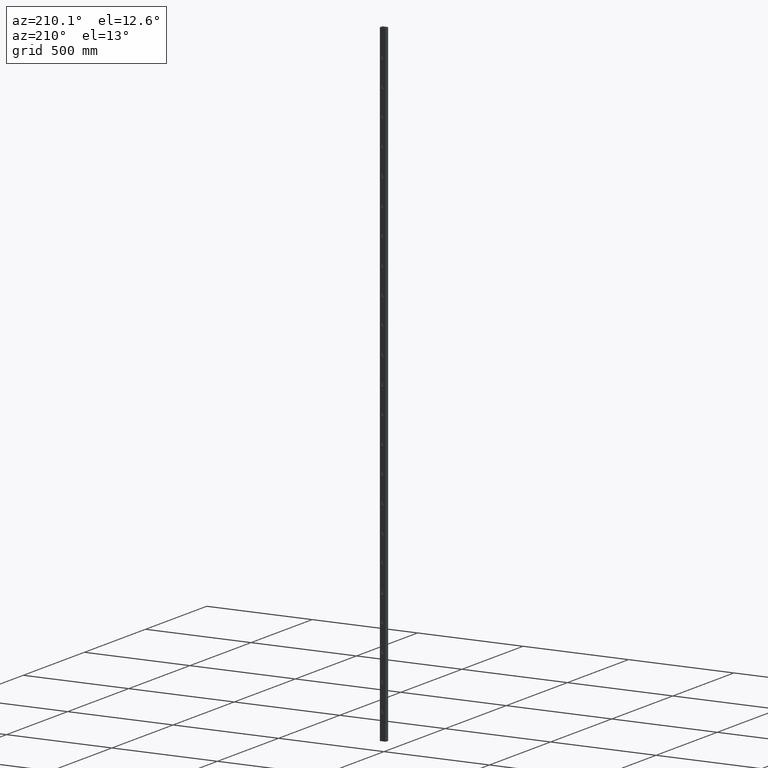
[diagram: clean part render]
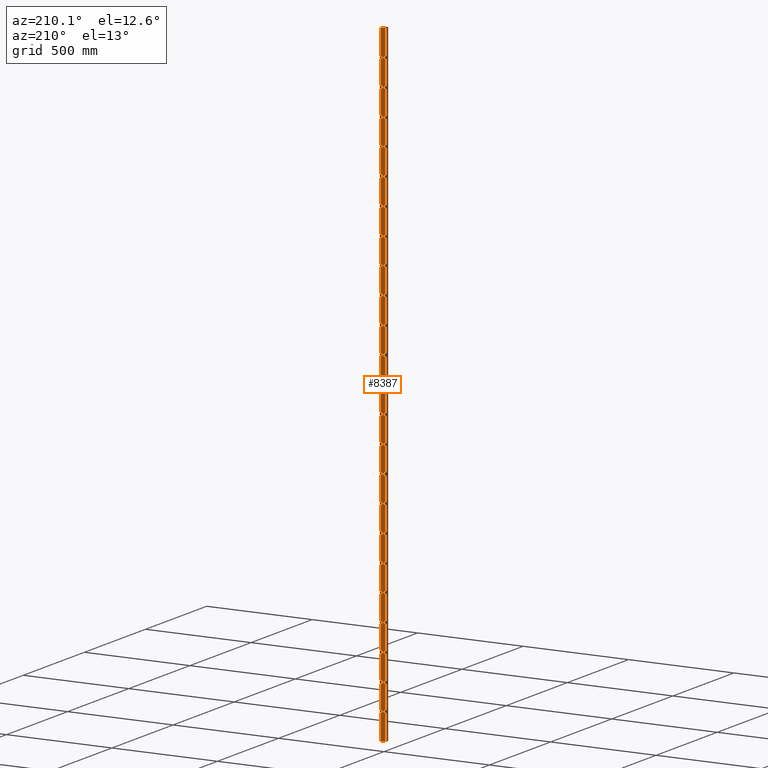
[diagram: same view with one face highlighted and labeled with its STEP entity id]
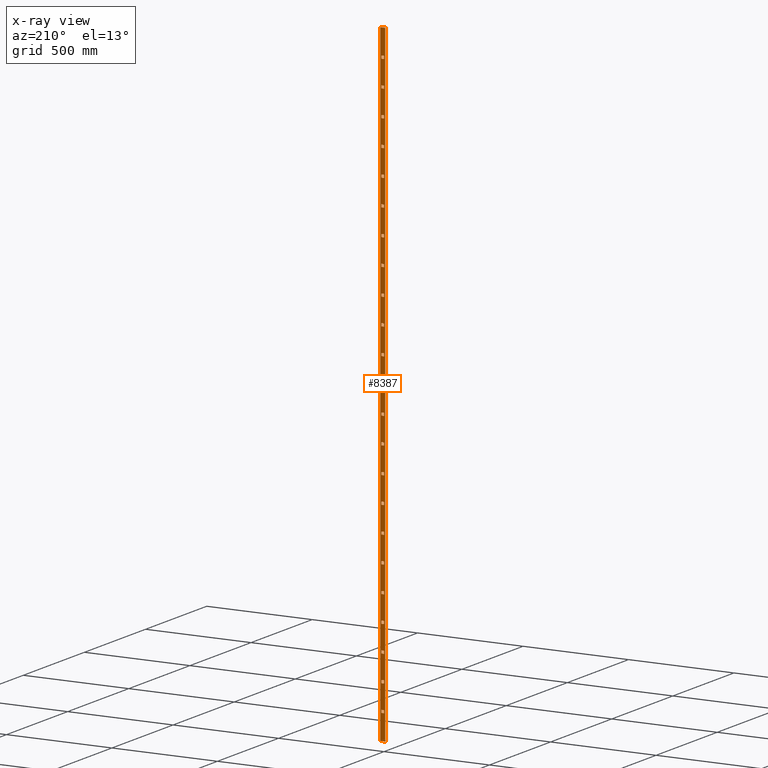
[diagram: x-ray of the same camera — body ghosted, the highlighted face saturated]
A machine part, auxiliary view. The second image highlights one B-rep face of the part: STEP entity #8387.
The next image is the same camera in x-ray: the body ghosted, the highlighted face saturated — about 0% of this face is hidden behind the body in this view.
In plain terms, the highlighted planar face has unit normal (0, -1, 0).
Its self-contained STEP definition (entity closure, byte-faithful):
#33 = ORIENTED_EDGE ( 'NONE', *, *, #6401, .F. ) ;
#58 = CARTESIAN_POINT ( 'NONE',  ( 6.500000000000045297, 10.00000000000000178, 1131.499999999984539 ) ) ;
#127 = VECTOR ( 'NONE', #15137, 1000.000000000000000 ) ;
#193 = ORIENTED_EDGE ( 'NONE', *, *, #12571, .F. ) ;
#195 = VERTEX_POINT ( 'NONE', #4325 ) ;
#197 = CARTESIAN_POINT ( 'NONE',  ( 6.499999999995244693, 10.00000000000000178, -243.5000000001834621 ) ) ;
#204 = LINE ( 'NONE', #15229, #7083 ) ;
#231 = VERTEX_POINT ( 'NONE', #13037 ) ;
#234 = ORIENTED_EDGE ( 'NONE', *, *, #14781, .F. ) ;
#265 = LINE ( 'NONE', #5088, #12901 ) ;
#267 = VECTOR ( 'NONE', #4902, 1000.000000000000000 ) ;
#321 = DIRECTION ( 'NONE',  ( -3.469446951953641010E-15, 0.000000000000000000, -1.000000000000000000 ) ) ;
#326 = CARTESIAN_POINT ( 'NONE',  ( 6.499999999993498534, 10.00000000000000178, -743.5000000002445404 ) ) ;
#370 = CARTESIAN_POINT ( 'NONE',  ( 6.499999999993935518, 10.00000000000000178, -618.5000000002294200 ) ) ;
#388 = VECTOR ( 'NONE', #11095, 1000.000000000000000 ) ;
#404 = VERTEX_POINT ( 'NONE', #16088 ) ;
#409 = DIRECTION ( 'NONE',  ( -0.000000000000000000, -0.000000000000000000, -1.000000000000000000 ) ) ;
#454 = CARTESIAN_POINT ( 'NONE',  ( -6.500000000003536726, 10.00000000000000178, 631.4999999999236024 ) ) ;
#463 = VERTEX_POINT ( 'NONE', #2271 ) ;
#495 = DIRECTION ( 'NONE',  ( -1.000000000000000000, -0.000000000000000000, -0.000000000000000000 ) ) ;
#519 = FACE_BOUND ( 'NONE', #2810, .T. ) ;
#546 = DIRECTION ( 'NONE',  ( -7.065662157920972983E-14, -0.000000000000000000, 1.000000000000000000 ) ) ;
#554 = CARTESIAN_POINT ( 'NONE',  ( -6.500000000006592060, 10.00000000000000178, -243.5000000001834621 ) ) ;
#558 = CARTESIAN_POINT ( 'NONE',  ( 6.499999999990833999, 10.00000000000000178, -1256.500000000305818 ) ) ;
#571 = VECTOR ( 'NONE', #1224, 1000.000000000000000 ) ;
#572 = CARTESIAN_POINT ( 'NONE',  ( 6.499999999993453237, 10.00000000000000178, -506.5000000002140155 ) ) ;
#575 = EDGE_CURVE ( 'NONE', #4737, #5547, #16381, .T. ) ;
#578 = ORIENTED_EDGE ( 'NONE', *, *, #13173, .F. ) ;
#587 = LINE ( 'NONE', #12202, #5166 ) ;
#591 = ORIENTED_EDGE ( 'NONE', *, *, #16068, .F. ) ;
#634 = DIRECTION ( 'NONE',  ( -7.065662157921032305E-14, -0.000000000000000000, 1.000000000000000000 ) ) ;
#644 = LINE ( 'NONE', #8910, #16268 ) ;
#656 = ORIENTED_EDGE ( 'NONE', *, *, #13657, .F. ) ;
#668 = DIRECTION ( 'NONE',  ( -7.065662157920972983E-14, 0.000000000000000000, -1.000000000000000000 ) ) ;
#671 = ORIENTED_EDGE ( 'NONE', *, *, #4887, .F. ) ;
#700 = CARTESIAN_POINT ( 'NONE',  ( -6.500000000010519585, 10.00000000000000178, -1368.500000000321279 ) ) ;
#702 = LINE ( 'NONE', #7936, #10408 ) ;
#703 = VECTOR ( 'NONE', #1922, 1000.000000000000000 ) ;
#718 = EDGE_LOOP ( 'NONE', ( #8679, #9191, #12290, #5268 ) ) ;
#744 = DIRECTION ( 'NONE',  ( -1.000000000000000000, -0.000000000000000000, -0.000000000000000000 ) ) ;
#795 = ORIENTED_EDGE ( 'NONE', *, *, #16118, .F. ) ;
#796 = DIRECTION ( 'NONE',  ( -7.065662157920972983E-14, 0.000000000000000000, -1.000000000000000000 ) ) ;
#843 = CARTESIAN_POINT ( 'NONE',  ( 6.499999999999608313, 10.00000000000000178, 1006.499999999969305 ) ) ;
#896 = CARTESIAN_POINT ( 'NONE',  ( 6.499999999994762412, 10.00000000000000178, -131.5000000001680291 ) ) ;
#899 = CARTESIAN_POINT ( 'NONE',  ( 6.499999999997863043, 10.00000000000000178, 506.4999999999082547 ) ) ;
#911 = CARTESIAN_POINT ( 'NONE',  ( -6.500000000006546763, 10.00000000000000178, -506.5000000002140155 ) ) ;
#918 = FACE_BOUND ( 'NONE', #13758, .T. ) ;
#926 = VERTEX_POINT ( 'NONE', #4175 ) ;
#948 = DIRECTION ( 'NONE',  ( -7.065662157921032305E-14, 0.000000000000000000, -1.000000000000000000 ) ) ;
#950 = DIRECTION ( 'NONE',  ( 1.000000000000000000, 0.000000000000000000, 0.000000000000000000 ) ) ;
#986 = DIRECTION ( 'NONE',  ( -7.065662157920972983E-14, -0.000000000000000000, 1.000000000000000000 ) ) ;
#992 = EDGE_CURVE ( 'NONE', #3764, #5619, #11990, .T. ) ;
#1001 = CARTESIAN_POINT ( 'NONE',  ( 6.499999999990397903, 10.00000000000000178, -1381.500000000321279 ) ) ;
#1024 = ORIENTED_EDGE ( 'NONE', *, *, #9843, .F. ) ;
#1054 = VECTOR ( 'NONE', #12034, 1000.000000000000000 ) ;
#1067 = LINE ( 'NONE', #2116, #11746 ) ;
#1082 = VECTOR ( 'NONE', #2984, 1000.000000000000000 ) ;
#1095 = LINE ( 'NONE', #4446, #10392 ) ;
#1101 = CARTESIAN_POINT ( 'NONE',  ( -6.500000000008774315, 10.00000000000000178, -868.5000000002601155 ) ) ;
#1105 = CARTESIAN_POINT ( 'NONE',  ( -6.500000000007028156, 10.00000000000000178, -368.5000000001987814 ) ) ;
#1171 = EDGE_CURVE ( 'NONE', #9913, #9918, #10823, .T. ) ;
#1180 = LINE ( 'NONE', #7112, #4147 ) ;
#1224 = DIRECTION ( 'NONE',  ( -1.000000000000000000, -0.000000000000000000, -0.000000000000000000 ) ) ;
#1232 = ORIENTED_EDGE ( 'NONE', *, *, #15098, .F. ) ;
#1313 = LINE ( 'NONE', #6612, #6809 ) ;
#1315 = DIRECTION ( 'NONE',  ( -7.065662157920972983E-14, -0.000000000000000000, 1.000000000000000000 ) ) ;
#1342 = CARTESIAN_POINT ( 'NONE',  ( -6.500000000003490541, 10.00000000000000178, 368.4999999998930207 ) ) ;
#1372 = VECTOR ( 'NONE', #8586, 1000.000000000000000 ) ;
#1374 = DIRECTION ( 'NONE',  ( 1.000000000000000000, 0.000000000000000000, 0.000000000000000000 ) ) ;
#1396 = DIRECTION ( 'NONE',  ( -1.000000000000000000, -0.000000000000000000, -0.000000000000000000 ) ) ;
#1408 = CARTESIAN_POINT ( 'NONE',  ( -6.500000000002182254, 10.00000000000000178, 743.4999999999388365 ) ) ;
#1415 = VERTEX_POINT ( 'NONE', #2258 ) ;
#1418 = LINE ( 'NONE', #12647, #3784 ) ;
#1419 = CARTESIAN_POINT ( 'NONE',  ( 6.499999999992626343, 10.00000000000000178, -993.5000000002751221 ) ) ;
#1458 = LINE ( 'NONE', #11984, #7767 ) ;
#1486 = EDGE_CURVE ( 'NONE', #3182, #5762, #8216, .T. ) ;
#1489 = LINE ( 'NONE', #10518, #13516 ) ;
#1500 = CARTESIAN_POINT ( 'NONE',  ( 6.499999999991753263, 10.00000000000000178, -1243.500000000305818 ) ) ;
#1519 = LINE ( 'NONE', #10333, #7641 ) ;
#1538 = ORIENTED_EDGE ( 'NONE', *, *, #10050, .F. ) ;
#1550 = CARTESIAN_POINT ( 'NONE',  ( 6.499999999997426947, 10.00000000000000178, 381.4999999998929070 ) ) ;
#1564 = CARTESIAN_POINT ( 'NONE',  ( 6.499999999996944666, 10.00000000000000178, 493.4999999999083684 ) ) ;
#1571 = VECTOR ( 'NONE', #744, 1000.000000000000000 ) ;
#1595 = DIRECTION ( 'NONE',  ( 1.000000000000000000, 0.000000000000000000, 0.000000000000000000 ) ) ;
#1631 = ORIENTED_EDGE ( 'NONE', *, *, #15435, .F. ) ;
#1634 = CARTESIAN_POINT ( 'NONE',  ( -6.500000000007418954, 10.00000000000000178, -756.5000000002444267 ) ) ;
#1641 = VERTEX_POINT ( 'NONE', #10805 ) ;
#1695 = EDGE_CURVE ( 'NONE', #9750, #3775, #4201, .T. ) ;
#1708 = CARTESIAN_POINT ( 'NONE',  ( -6.500000000008337331, 10.00000000000000178, -743.5000000002445404 ) ) ;
#1711 = CARTESIAN_POINT ( 'NONE',  ( 6.499999999999126921, 10.00000000000000178, 1118.499999999984766 ) ) ;
#1715 = FACE_BOUND ( 'NONE', #4387, .T. ) ;
#1728 = EDGE_CURVE ( 'NONE', #6553, #8484, #7145, .T. ) ;
#1737 = DIRECTION ( 'NONE',  ( 1.000000000000000000, 0.000000000000000000, 0.000000000000000000 ) ) ;
#1759 = LINE ( 'NONE', #6072, #1372 ) ;
#1765 = EDGE_LOOP ( 'NONE', ( #12447, #2789, #7555, #1631 ) ) ;
#1777 = EDGE_CURVE ( 'NONE', #4622, #11757, #13684, .T. ) ;
#1806 = ORIENTED_EDGE ( 'NONE', *, *, #2212, .F. ) ;
#1813 = EDGE_CURVE ( 'NONE', #5948, #3598, #3204, .T. ) ;
#1818 = VERTEX_POINT ( 'NONE', #4543 ) ;
#1884 = FACE_BOUND ( 'NONE', #9723, .T. ) ;
#1922 = DIRECTION ( 'NONE',  ( -7.065662157920972983E-14, -0.000000000000000000, 1.000000000000000000 ) ) ;
#1926 = DIRECTION ( 'NONE',  ( 1.000000000000000000, 0.000000000000000000, 0.000000000000000000 ) ) ;
#2004 = VERTEX_POINT ( 'NONE', #10872 ) ;
#2034 = DIRECTION ( 'NONE',  ( -7.065662157920972983E-14, -0.000000000000000000, 1.000000000000000000 ) ) ;
#2072 = CARTESIAN_POINT ( 'NONE',  ( 6.500000000014788171, 10.00000000000000178, 1381.500000000000000 ) ) ;
#2092 = EDGE_CURVE ( 'NONE', #3342, #14479, #1759, .T. ) ;
#2116 = CARTESIAN_POINT ( 'NONE',  ( -6.500000000001354472, 10.00000000000000178, 1256.500000000000000 ) ) ;
#2131 = CARTESIAN_POINT ( 'NONE',  ( 11.99999999999998934, 10.00000000000000178, -1500.000000000000000 ) ) ;
#2135 = CARTESIAN_POINT ( 'NONE',  ( -12.00000000000001421, 10.00000000000000178, -1500.000000000000000 ) ) ;
#2140 = DIRECTION ( 'NONE',  ( -1.000000000000000000, -0.000000000000000000, -0.000000000000000000 ) ) ;
#2182 = VECTOR ( 'NONE', #796, 1000.000000000000000 ) ;
#2197 = DIRECTION ( 'NONE',  ( -1.000000000000000000, -0.000000000000000000, -0.000000000000000000 ) ) ;
#2212 = EDGE_CURVE ( 'NONE', #8284, #5766, #15159, .T. ) ;
#2225 = ORIENTED_EDGE ( 'NONE', *, *, #8973, .F. ) ;
#2229 = CARTESIAN_POINT ( 'NONE',  ( -6.500000000007901235, 10.00000000000000178, -618.5000000002294200 ) ) ;
#2249 = VERTEX_POINT ( 'NONE', #15135 ) ;
#2258 = CARTESIAN_POINT ( 'NONE',  ( -6.500000000007028156, 10.00000000000000178, -368.5000000001987814 ) ) ;
#2271 = CARTESIAN_POINT ( 'NONE',  ( -12.00000000000001421, 10.00000000000000000, 1500.000000000000000 ) ) ;
#2275 = VECTOR ( 'NONE', #3713, 1000.000000000000000 ) ;
#2303 = VECTOR ( 'NONE', #668, 1000.000000000000000 ) ;
#2338 = VERTEX_POINT ( 'NONE', #1500 ) ;
#2349 = LINE ( 'NONE', #13906, #4332 ) ;
#2358 = DIRECTION ( 'NONE',  ( -7.065662157920972983E-14, -0.000000000000000000, 1.000000000000000000 ) ) ;
#2375 = DIRECTION ( 'NONE',  ( -7.065662157920972983E-14, 0.000000000000000000, -1.000000000000000000 ) ) ;
#2400 = ORIENTED_EDGE ( 'NONE', *, *, #1813, .F. ) ;
#2447 = EDGE_CURVE ( 'NONE', #12833, #8691, #1519, .T. ) ;
#2450 = CARTESIAN_POINT ( 'NONE',  ( 6.499999999997863043, 10.00000000000000178, 506.4999999999082547 ) ) ;
#2452 = ORIENTED_EDGE ( 'NONE', *, *, #7383, .F. ) ;
#2454 = VECTOR ( 'NONE', #13242, 1000.000000000000000 ) ;
#2455 = LINE ( 'NONE', #1101, #9574 ) ;
#2466 = DIRECTION ( 'NONE',  ( -7.065662157920972983E-14, 0.000000000000000000, -1.000000000000000000 ) ) ;
#2469 = EDGE_CURVE ( 'NONE', #4940, #5833, #14546, .T. ) ;
#2479 = CARTESIAN_POINT ( 'NONE',  ( 11.99999999999998934, 10.00000000000000178, 1500.000000000000000 ) ) ;
#2487 = CARTESIAN_POINT ( 'NONE',  ( -12.00000000000001421, 10.00000000000000178, 1500.000000000000000 ) ) ;
#2496 = ORIENTED_EDGE ( 'NONE', *, *, #6025, .F. ) ;
#2498 = VECTOR ( 'NONE', #4108, 1000.000000000000000 ) ;
#2505 = CARTESIAN_POINT ( 'NONE',  ( 6.499999999997817746, 10.00000000000000178, 743.4999999999388365 ) ) ;
#2520 = DIRECTION ( 'NONE',  ( -7.065662157920972983E-14, -0.000000000000000000, 1.000000000000000000 ) ) ;
#2593 = ORIENTED_EDGE ( 'NONE', *, *, #15417, .F. ) ;
#2625 = ORIENTED_EDGE ( 'NONE', *, *, #15850, .F. ) ;
#2632 = EDGE_CURVE ( 'NONE', #12272, #6565, #10789, .T. ) ;
#2650 = VECTOR ( 'NONE', #7622, 1000.000000000000000 ) ;
#2698 = FACE_BOUND ( 'NONE', #14473, .T. ) ;
#2734 = CARTESIAN_POINT ( 'NONE',  ( -6.500000000006592060, 10.00000000000000178, -243.5000000001834621 ) ) ;
#2740 = DIRECTION ( 'NONE',  ( -1.000000000000000000, -0.000000000000000000, -0.000000000000000000 ) ) ;
#2754 = VECTOR ( 'NONE', #14949, 1000.000000000000000 ) ;
#2789 = ORIENTED_EDGE ( 'NONE', *, *, #4160, .F. ) ;
#2810 = EDGE_LOOP ( 'NONE', ( #6043, #4568, #4020, #12594 ) ) ;
#2813 = CARTESIAN_POINT ( 'NONE',  ( -6.500000000007465140, 10.00000000000000178, -493.5000000002140723 ) ) ;
#2905 = ORIENTED_EDGE ( 'NONE', *, *, #15367, .F. ) ;
#2926 = VECTOR ( 'NONE', #6725, 1000.000000000000000 ) ;
#2944 = DIRECTION ( 'NONE',  ( -1.000000000000000000, -0.000000000000000000, -0.000000000000000000 ) ) ;
#2945 = VECTOR ( 'NONE', #4097, 1000.000000000000000 ) ;
#2949 = ORIENTED_EDGE ( 'NONE', *, *, #11927, .F. ) ;
#2960 = ORIENTED_EDGE ( 'NONE', *, *, #13463, .F. ) ;
#2984 = DIRECTION ( 'NONE',  ( -7.065662157920972983E-14, 0.000000000000000000, -1.000000000000000000 ) ) ;
#2990 = CARTESIAN_POINT ( 'NONE',  ( -6.500000000004846790, 10.00000000000000178, 256.4999999998776161 ) ) ;
#2998 = CARTESIAN_POINT ( 'NONE',  ( -6.500000000004800604, 10.00000000000000178, -6.500000000152938995 ) ) ;
#3014 = ORIENTED_EDGE ( 'NONE', *, *, #12992, .F. ) ;
#3035 = CARTESIAN_POINT ( 'NONE',  ( -6.500000000004846790, 10.00000000000000178, 256.4999999998776161 ) ) ;
#3056 = LINE ( 'NONE', #8723, #16117 ) ;
#3060 = EDGE_CURVE ( 'NONE', #10740, #4737, #10988, .T. ) ;
#3066 = FACE_BOUND ( 'NONE', #12711, .T. ) ;
#3083 = EDGE_CURVE ( 'NONE', #4799, #12482, #3056, .T. ) ;
#3087 = LINE ( 'NONE', #4214, #2303 ) ;
#3088 = CARTESIAN_POINT ( 'NONE',  ( -6.500000000009647394, 10.00000000000000178, -1118.500000000290811 ) ) ;
#3122 = EDGE_CURVE ( 'NONE', #14246, #15341, #12354, .T. ) ;
#3144 = ORIENTED_EDGE ( 'NONE', *, *, #9585, .F. ) ;
#3174 = CARTESIAN_POINT ( 'NONE',  ( -6.500000000010519585, 10.00000000000000178, -1368.500000000321279 ) ) ;
#3182 = VERTEX_POINT ( 'NONE', #11171 ) ;
#3204 = LINE ( 'NONE', #15970, #1054 ) ;
#3224 = DIRECTION ( 'NONE',  ( -0.000000000000000000, -0.000000000000000000, -1.000000000000000000 ) ) ;
#3289 = ORIENTED_EDGE ( 'NONE', *, *, #4627, .F. ) ;
#3301 = EDGE_CURVE ( 'NONE', #10220, #3342, #1313, .T. ) ;
#3342 = VERTEX_POINT ( 'NONE', #11693 ) ;
#3371 = LINE ( 'NONE', #2487, #12067 ) ;
#3441 = LINE ( 'NONE', #10795, #15332 ) ;
#3458 = CARTESIAN_POINT ( 'NONE',  ( -6.500000000002618350, 10.00000000000000178, 618.4999999999237161 ) ) ;
#3515 = CARTESIAN_POINT ( 'NONE',  ( 6.499999999994808597, 10.00000000000000178, -368.5000000001987814 ) ) ;
#3547 = LINE ( 'NONE', #12375, #15807 ) ;
#3552 = VERTEX_POINT ( 'NONE', #14884 ) ;
#3554 = CARTESIAN_POINT ( 'NONE',  ( 6.499999999992626343, 10.00000000000000178, -993.5000000002751221 ) ) ;
#3598 = VERTEX_POINT ( 'NONE', #8568 ) ;
#3617 = ORIENTED_EDGE ( 'NONE', *, *, #2092, .F. ) ;
#3624 = ORIENTED_EDGE ( 'NONE', *, *, #15520, .F. ) ;
#3644 = LINE ( 'NONE', #5508, #6227 ) ;
#3713 = DIRECTION ( 'NONE',  ( -1.000000000000000000, -0.000000000000000000, -0.000000000000000000 ) ) ;
#3753 = ORIENTED_EDGE ( 'NONE', *, *, #9192, .F. ) ;
#3764 = VERTEX_POINT ( 'NONE', #6211 ) ;
#3775 = VERTEX_POINT ( 'NONE', #10403 ) ;
#3784 = VECTOR ( 'NONE', #5105, 1000.000000000000000 ) ;
#3805 = CARTESIAN_POINT ( 'NONE',  ( -6.500000000001309175, 10.00000000000000178, 993.4999999999695319 ) ) ;
#3816 = VERTEX_POINT ( 'NONE', #6524 ) ;
#3847 = VECTOR ( 'NONE', #11703, 1000.000000000000000 ) ;
#3894 = FACE_BOUND ( 'NONE', #718, .T. ) ;
#3907 = VERTEX_POINT ( 'NONE', #9013 ) ;
#3928 = CARTESIAN_POINT ( 'NONE',  ( -6.500000000010519585, 10.00000000000000178, -1368.500000000321279 ) ) ;
#3937 = DIRECTION ( 'NONE',  ( 1.000000000000000000, 0.000000000000000000, 0.000000000000000000 ) ) ;
#3940 = VECTOR ( 'NONE', #1315, 1000.000000000000000 ) ;
#3952 = LINE ( 'NONE', #9816, #388 ) ;
#3980 = CARTESIAN_POINT ( 'NONE',  ( -6.500000000009647394, 10.00000000000000178, -1118.500000000290811 ) ) ;
#3990 = CARTESIAN_POINT ( 'NONE',  ( -6.499999999985112353, 10.00000000000000178, 1381.500000000000000 ) ) ;
#4020 = ORIENTED_EDGE ( 'NONE', *, *, #1171, .F. ) ;
#4022 = ORIENTED_EDGE ( 'NONE', *, *, #14928, .F. ) ;
#4060 = VECTOR ( 'NONE', #4673, 1000.000000000000000 ) ;
#4089 = VERTEX_POINT ( 'NONE', #5964 ) ;
#4097 = DIRECTION ( 'NONE',  ( -7.065662157920972983E-14, -0.000000000000000000, 1.000000000000000000 ) ) ;
#4102 = EDGE_CURVE ( 'NONE', #6374, #5948, #2455, .T. ) ;
#4108 = DIRECTION ( 'NONE',  ( -0.000000000000000000, -0.000000000000000000, 1.000000000000000000 ) ) ;
#4109 = LINE ( 'NONE', #6195, #14185 ) ;
#4143 = CARTESIAN_POINT ( 'NONE',  ( -6.500000000001354472, 10.00000000000000178, 1256.500000000000000 ) ) ;
#4147 = VECTOR ( 'NONE', #12152, 1000.000000000000000 ) ;
#4160 = EDGE_CURVE ( 'NONE', #5817, #4799, #8985, .T. ) ;
#4175 = CARTESIAN_POINT ( 'NONE',  ( -6.500000000000872191, 10.00000000000000178, 1118.499999999984766 ) ) ;
#4179 = VERTEX_POINT ( 'NONE', #14901 ) ;
#4201 = LINE ( 'NONE', #3554, #10527 ) ;
#4214 = CARTESIAN_POINT ( 'NONE',  ( 6.499999999991316280, 10.00000000000000178, -1368.500000000321279 ) ) ;
#4216 = EDGE_CURVE ( 'NONE', #5762, #926, #14134, .T. ) ;
#4307 = EDGE_CURVE ( 'NONE', #195, #12089, #3441, .T. ) ;
#4325 = CARTESIAN_POINT ( 'NONE',  ( -6.500000000004364509, 10.00000000000000178, 118.4999999998623821 ) ) ;
#4329 = VERTEX_POINT ( 'NONE', #2131 ) ;
#4332 = VECTOR ( 'NONE', #2520, 1000.000000000000000 ) ;
#4370 = ORIENTED_EDGE ( 'NONE', *, *, #5610, .F. ) ;
#4374 = ORIENTED_EDGE ( 'NONE', *, *, #10813, .F. ) ;
#4387 = EDGE_LOOP ( 'NONE', ( #8326, #2625, #656, #11651 ) ) ;
#4420 = VECTOR ( 'NONE', #13716, 1000.000000000000000 ) ;
#4427 = CARTESIAN_POINT ( 'NONE',  ( -6.500000000001790568, 10.00000000000000178, 1131.499999999984539 ) ) ;
#4428 = CARTESIAN_POINT ( 'NONE',  ( -6.499999999985112353, 10.00000000000000178, 1368.500000000000000 ) ) ;
#4446 = CARTESIAN_POINT ( 'NONE',  ( -6.500000000002227551, 10.00000000000000178, 1006.499999999969305 ) ) ;
#4487 = DIRECTION ( 'NONE',  ( 1.000000000000000000, 0.000000000000000000, 0.000000000000000000 ) ) ;
#4513 = DIRECTION ( 'NONE',  ( 1.000000000000000000, 0.000000000000000000, 0.000000000000000000 ) ) ;
#4543 = CARTESIAN_POINT ( 'NONE',  ( 6.499999999996117772, 10.00000000000000178, 6.499999999846961529 ) ) ;
#4553 = DIRECTION ( 'NONE',  ( -7.065662157920972983E-14, -0.000000000000000000, 1.000000000000000000 ) ) ;
#4568 = ORIENTED_EDGE ( 'NONE', *, *, #7973, .F. ) ;
#4575 = CARTESIAN_POINT ( 'NONE',  ( -6.500000000002227551, 10.00000000000000178, 1006.499999999969305 ) ) ;
#4594 = VERTEX_POINT ( 'NONE', #5874 ) ;
#4604 = DIRECTION ( 'NONE',  ( -1.000000000000000000, -0.000000000000000000, -0.000000000000000000 ) ) ;
#4612 = EDGE_CURVE ( 'NONE', #15341, #3764, #1067, .T. ) ;
#4622 = VERTEX_POINT ( 'NONE', #13416 ) ;
#4627 = EDGE_CURVE ( 'NONE', #5445, #12440, #12326, .T. ) ;
#4673 = DIRECTION ( 'NONE',  ( -1.000000000000000000, -0.000000000000000000, -0.000000000000000000 ) ) ;
#4678 = FACE_OUTER_BOUND ( 'NONE', #8880, .T. ) ;
#4679 = VECTOR ( 'NONE', #9368, 1000.000000000000000 ) ;
#4687 = CARTESIAN_POINT ( 'NONE',  ( 6.499999999995198507, 10.00000000000000178, -6.500000000152938995 ) ) ;
#4690 = DIRECTION ( 'NONE',  ( 1.000000000000000000, 0.000000000000000000, 0.000000000000000000 ) ) ;
#4692 = VECTOR ( 'NONE', #8509, 1000.000000000000000 ) ;
#4722 = EDGE_CURVE ( 'NONE', #12460, #15096, #6783, .T. ) ;
#4737 = VERTEX_POINT ( 'NONE', #10283 ) ;
#4749 = ORIENTED_EDGE ( 'NONE', *, *, #8131, .F. ) ;
#4799 = VERTEX_POINT ( 'NONE', #9055 ) ;
#4806 = DIRECTION ( 'NONE',  ( -1.000000000000000000, -0.000000000000000000, -0.000000000000000000 ) ) ;
#4812 = VECTOR ( 'NONE', #15709, 1000.000000000000000 ) ;
#4861 = CARTESIAN_POINT ( 'NONE',  ( -6.500000000004409806, 10.00000000000000178, 381.4999999998929070 ) ) ;
#4869 = DIRECTION ( 'NONE',  ( -1.000000000000000000, -0.000000000000000000, -0.000000000000000000 ) ) ;
#4876 = LINE ( 'NONE', #8525, #7819 ) ;
#4887 = EDGE_CURVE ( 'NONE', #10514, #10961, #7182, .T. ) ;
#4902 = DIRECTION ( 'NONE',  ( -7.065662157920972983E-14, 0.000000000000000000, -1.000000000000000000 ) ) ;
#4909 = CARTESIAN_POINT ( 'NONE',  ( -6.500000000007418954, 10.00000000000000178, -756.5000000002441993 ) ) ;
#4921 = CARTESIAN_POINT ( 'NONE',  ( 6.499999999998736122, 10.00000000000000178, 756.4999999999387228 ) ) ;
#4940 = VERTEX_POINT ( 'NONE', #7091 ) ;
#4948 = VERTEX_POINT ( 'NONE', #14736 ) ;
#4952 = CARTESIAN_POINT ( 'NONE',  ( 6.499999999993498534, 10.00000000000000178, -743.5000000002445404 ) ) ;
#4955 = VERTEX_POINT ( 'NONE', #5855 ) ;
#4967 = DIRECTION ( 'NONE',  ( -7.065662157920972983E-14, 0.000000000000000000, -1.000000000000000000 ) ) ;
#4992 = LINE ( 'NONE', #6528, #10328 ) ;
#5020 = VERTEX_POINT ( 'NONE', #6753 ) ;
#5027 = VERTEX_POINT ( 'NONE', #572 ) ;
#5048 = VECTOR ( 'NONE', #2375, 1000.000000000000000 ) ;
#5057 = CARTESIAN_POINT ( 'NONE',  ( 6.499999999996071587, 10.00000000000000178, 243.4999999998777014 ) ) ;
#5088 = CARTESIAN_POINT ( 'NONE',  ( -6.500000000007465140, 10.00000000000000178, -493.5000000002140723 ) ) ;
#5096 = EDGE_CURVE ( 'NONE', #12756, #16246, #10559, .T. ) ;
#5105 = DIRECTION ( 'NONE',  ( -7.065662157920972983E-14, 0.000000000000000000, -1.000000000000000000 ) ) ;
#5160 = VERTEX_POINT ( 'NONE', #911 ) ;
#5166 = VECTOR ( 'NONE', #4604, 1000.000000000000000 ) ;
#5178 = EDGE_LOOP ( 'NONE', ( #591, #4749, #13112, #2949 ) ) ;
#5187 = VECTOR ( 'NONE', #15061, 1000.000000000000000 ) ;
#5245 = VECTOR ( 'NONE', #5949, 1000.000000000000000 ) ;
#5266 = DIRECTION ( 'NONE',  ( -7.065662157920972983E-14, 0.000000000000000000, -1.000000000000000000 ) ) ;
#5268 = ORIENTED_EDGE ( 'NONE', *, *, #12058, .F. ) ;
#5372 = LINE ( 'NONE', #7778, #6149 ) ;
#5398 = LINE ( 'NONE', #12186, #11520 ) ;
#5421 = CARTESIAN_POINT ( 'NONE',  ( 6.499999999995680788, 10.00000000000000178, -118.5000000001681428 ) ) ;
#5445 = VERTEX_POINT ( 'NONE', #2450 ) ;
#5453 = PLANE ( 'NONE',  #11295 ) ;
#5508 = CARTESIAN_POINT ( 'NONE',  ( -6.500000000007028156, 10.00000000000000178, -368.5000000001987814 ) ) ;
#5547 = VERTEX_POINT ( 'NONE', #2734 ) ;
#5552 = DIRECTION ( 'NONE',  ( -7.065662157920972983E-14, -0.000000000000000000, 1.000000000000000000 ) ) ;
#5574 = ORIENTED_EDGE ( 'NONE', *, *, #1695, .F. ) ;
#5585 = EDGE_LOOP ( 'NONE', ( #193, #578, #5574, #13491 ) ) ;
#5610 = EDGE_CURVE ( 'NONE', #4594, #3552, #9159, .T. ) ;
#5614 = LINE ( 'NONE', #7494, #2650 ) ;
#5619 = VERTEX_POINT ( 'NONE', #13980 ) ;
#5652 = FACE_BOUND ( 'NONE', #6189, .T. ) ;
#5683 = EDGE_CURVE ( 'NONE', #10961, #12874, #14298, .T. ) ;
#5711 = ORIENTED_EDGE ( 'NONE', *, *, #2632, .F. ) ;
#5762 = VERTEX_POINT ( 'NONE', #1711 ) ;
#5766 = VERTEX_POINT ( 'NONE', #11844 ) ;
#5774 = CARTESIAN_POINT ( 'NONE',  ( -6.500000000000872191, 10.00000000000000178, 1118.499999999984766 ) ) ;
#5807 = VERTEX_POINT ( 'NONE', #2813 ) ;
#5817 = VERTEX_POINT ( 'NONE', #7872 ) ;
#5833 = VERTEX_POINT ( 'NONE', #326 ) ;
#5834 = VERTEX_POINT ( 'NONE', #700 ) ;
#5855 = CARTESIAN_POINT ( 'NONE',  ( -6.500000000004409806, 10.00000000000000178, 381.4999999998929070 ) ) ;
#5868 = VECTOR ( 'NONE', #11923, 1000.000000000000000 ) ;
#5874 = CARTESIAN_POINT ( 'NONE',  ( -6.500000000008729018, 10.00000000000000178, -1131.500000000290356 ) ) ;
#5881 = VECTOR ( 'NONE', #11142, 1000.000000000000000 ) ;
#5939 = CARTESIAN_POINT ( 'NONE',  ( -6.500000000000436096, 10.00000000000000178, 1243.500000000000000 ) ) ;
#5948 = VERTEX_POINT ( 'NONE', #7382 ) ;
#5949 = DIRECTION ( 'NONE',  ( -7.065662157920972983E-14, 0.000000000000000000, -1.000000000000000000 ) ) ;
#5952 = ORIENTED_EDGE ( 'NONE', *, *, #4102, .F. ) ;
#5964 = CARTESIAN_POINT ( 'NONE',  ( 6.500000000014785506, 10.00000000000000178, 1368.500000000000000 ) ) ;
#5968 = EDGE_LOOP ( 'NONE', ( #3617, #14446, #8522, #10070 ) ) ;
#6007 = LINE ( 'NONE', #8847, #4420 ) ;
#6025 = EDGE_CURVE ( 'NONE', #13678, #4955, #7941, .T. ) ;
#6043 = ORIENTED_EDGE ( 'NONE', *, *, #8521, .F. ) ;
#6072 = CARTESIAN_POINT ( 'NONE',  ( -6.500000000002664535, 10.00000000000000178, 881.4999999999540705 ) ) ;
#6079 = EDGE_CURVE ( 'NONE', #5807, #4948, #265, .T. ) ;
#6083 = CARTESIAN_POINT ( 'NONE',  ( -6.500000000003054446, 10.00000000000000178, 493.4999999999083684 ) ) ;
#6085 = LINE ( 'NONE', #6829, #13773 ) ;
#6137 = EDGE_CURVE ( 'NONE', #14964, #13626, #11137, .T. ) ;
#6149 = VECTOR ( 'NONE', #9094, 1000.000000000000000 ) ;
#6189 = EDGE_LOOP ( 'NONE', ( #4374, #16179, #13061, #7935 ) ) ;
#6192 = VECTOR ( 'NONE', #2358, 1000.000000000000000 ) ;
#6195 = CARTESIAN_POINT ( 'NONE',  ( -6.500000000003928413, 10.00000000000000178, 243.4999999998777014 ) ) ;
#6197 = DIRECTION ( 'NONE',  ( -1.000000000000000000, -0.000000000000000000, -0.000000000000000000 ) ) ;
#6211 = CARTESIAN_POINT ( 'NONE',  ( 6.500000000000481393, 10.00000000000000178, 1256.500000000000000 ) ) ;
#6227 = VECTOR ( 'NONE', #1737, 1000.000000000000000 ) ;
#6234 = EDGE_CURVE ( 'NONE', #13056, #195, #13281, .T. ) ;
#6242 = CARTESIAN_POINT ( 'NONE',  ( -6.500000000004409806, 10.00000000000000178, 381.4999999998929070 ) ) ;
#6271 = LINE ( 'NONE', #3035, #11957 ) ;
#6314 = CARTESIAN_POINT ( 'NONE',  ( -6.500000000004800604, 10.00000000000000178, -6.500000000152938995 ) ) ;
#6353 = CARTESIAN_POINT ( 'NONE',  ( -6.500000000005236700, 10.00000000000000178, -131.5000000001680291 ) ) ;
#6354 = ORIENTED_EDGE ( 'NONE', *, *, #1728, .F. ) ;
#6362 = CARTESIAN_POINT ( 'NONE',  ( -6.500000000009601209, 10.00000000000000178, -1381.500000000321052 ) ) ;
#6374 = VERTEX_POINT ( 'NONE', #7218 ) ;
#6401 = EDGE_CURVE ( 'NONE', #10172, #3816, #5398, .T. ) ;
#6459 = FACE_BOUND ( 'NONE', #5178, .T. ) ;
#6515 = DIRECTION ( 'NONE',  ( -7.065662157920972983E-14, -0.000000000000000000, 1.000000000000000000 ) ) ;
#6524 = CARTESIAN_POINT ( 'NONE',  ( -6.500000000010083490, 10.00000000000000178, -1243.500000000305818 ) ) ;
#6528 = CARTESIAN_POINT ( 'NONE',  ( -6.500000000006155076, 10.00000000000000178, -118.5000000001681428 ) ) ;
#6537 = ORIENTED_EDGE ( 'NONE', *, *, #3122, .F. ) ;
#6553 = VERTEX_POINT ( 'NONE', #15130 ) ;
#6565 = VERTEX_POINT ( 'NONE', #3805 ) ;
#6567 = CARTESIAN_POINT ( 'NONE',  ( -6.500000000003100631, 10.00000000000000178, 756.4999999999387228 ) ) ;
#6573 = ORIENTED_EDGE ( 'NONE', *, *, #10294, .F. ) ;
#6612 = CARTESIAN_POINT ( 'NONE',  ( -6.500000000001745271, 10.00000000000000178, 868.4999999999541842 ) ) ;
#6647 = FACE_BOUND ( 'NONE', #12501, .T. ) ;
#6659 = LINE ( 'NONE', #10975, #5881 ) ;
#6661 = VECTOR ( 'NONE', #3937, 1000.000000000000000 ) ;
#6670 = VECTOR ( 'NONE', #5552, 1000.000000000000000 ) ;
#6725 = DIRECTION ( 'NONE',  ( -7.065662157920972983E-14, -0.000000000000000000, 1.000000000000000000 ) ) ;
#6735 = EDGE_CURVE ( 'NONE', #8691, #7769, #4992, .T. ) ;
#6753 = CARTESIAN_POINT ( 'NONE',  ( 6.499999999996508571, 10.00000000000000178, 368.4999999998930207 ) ) ;
#6783 = LINE ( 'NONE', #9950, #5048 ) ;
#6809 = VECTOR ( 'NONE', #9155, 1000.000000000000000 ) ;
#6829 = CARTESIAN_POINT ( 'NONE',  ( -6.500000000009210410, 10.00000000000000178, -993.5000000002751221 ) ) ;
#6840 = VECTOR ( 'NONE', #5266, 1000.000000000000000 ) ;
#6866 = EDGE_CURVE ( 'NONE', #5027, #5160, #16248, .T. ) ;
#6867 = CARTESIAN_POINT ( 'NONE',  ( -6.500000000003972822, 10.00000000000000178, 506.4999999999082547 ) ) ;
#6880 = ORIENTED_EDGE ( 'NONE', *, *, #10535, .F. ) ;
#6897 = ORIENTED_EDGE ( 'NONE', *, *, #13130, .F. ) ;
#6947 = LINE ( 'NONE', #8610, #13882 ) ;
#7010 = LINE ( 'NONE', #10048, #127 ) ;
#7041 = VECTOR ( 'NONE', #7250, 1000.000000000000000 ) ;
#7083 = VECTOR ( 'NONE', #1374, 1000.000000000000000 ) ;
#7090 = CARTESIAN_POINT ( 'NONE',  ( -6.500000000006109779, 10.00000000000000178, -381.5000000001986677 ) ) ;
#7091 = CARTESIAN_POINT ( 'NONE',  ( -6.500000000008337331, 10.00000000000000178, -743.5000000002445404 ) ) ;
#7112 = CARTESIAN_POINT ( 'NONE',  ( 6.499999999993935518, 10.00000000000000178, -618.5000000002294200 ) ) ;
#7145 = LINE ( 'NONE', #8622, #267 ) ;
#7182 = LINE ( 'NONE', #8306, #13111 ) ;
#7192 = CARTESIAN_POINT ( 'NONE',  ( -6.500000000003928413, 10.00000000000000178, 243.4999999998777014 ) ) ;
#7206 = CARTESIAN_POINT ( 'NONE',  ( -6.500000000005236700, 10.00000000000000178, -131.5000000001680291 ) ) ;
#7218 = CARTESIAN_POINT ( 'NONE',  ( -6.500000000007855050, 10.00000000000000178, -881.5000000002597744 ) ) ;
#7241 = VECTOR ( 'NONE', #1926, 1000.000000000000000 ) ;
#7250 = DIRECTION ( 'NONE',  ( -7.065662157920972983E-14, 0.000000000000000000, -1.000000000000000000 ) ) ;
#7251 = ORIENTED_EDGE ( 'NONE', *, *, #14812, .F. ) ;
#7275 = DIRECTION ( 'NONE',  ( -7.065662157920972983E-14, 0.000000000000000000, -1.000000000000000000 ) ) ;
#7283 = LINE ( 'NONE', #10226, #2945 ) ;
#7295 = CARTESIAN_POINT ( 'NONE',  ( -6.500000000006546763, 10.00000000000000178, -506.5000000002140155 ) ) ;
#7333 = CARTESIAN_POINT ( 'NONE',  ( 6.499999999993062438, 10.00000000000000178, -868.5000000002601155 ) ) ;
#7366 = CARTESIAN_POINT ( 'NONE',  ( 6.499999999999172218, 10.00000000000000178, 881.4999999999540705 ) ) ;
#7382 = CARTESIAN_POINT ( 'NONE',  ( -6.500000000008774315, 10.00000000000000178, -868.5000000002601155 ) ) ;
#7383 = EDGE_CURVE ( 'NONE', #16246, #2249, #7537, .T. ) ;
#7392 = VECTOR ( 'NONE', #4806, 1000.000000000000000 ) ;
#7464 = EDGE_CURVE ( 'NONE', #3907, #9750, #13453, .T. ) ;
#7483 = CARTESIAN_POINT ( 'NONE',  ( -6.500000000009210410, 10.00000000000000178, -993.5000000002751221 ) ) ;
#7494 = CARTESIAN_POINT ( 'NONE',  ( -6.500000000002664535, 10.00000000000000178, 881.4999999999540705 ) ) ;
#7537 = LINE ( 'NONE', #7090, #14068 ) ;
#7555 = ORIENTED_EDGE ( 'NONE', *, *, #14795, .F. ) ;
#7569 = DIRECTION ( 'NONE',  ( -1.000000000000000000, -0.000000000000000000, -0.000000000000000000 ) ) ;
#7581 = CARTESIAN_POINT ( 'NONE',  ( -6.500000000005672796, 10.00000000000000178, -256.5000000001833769 ) ) ;
#7622 = DIRECTION ( 'NONE',  ( 1.000000000000000000, 0.000000000000000000, 0.000000000000000000 ) ) ;
#7641 = VECTOR ( 'NONE', #9096, 1000.000000000000000 ) ;
#7763 = ORIENTED_EDGE ( 'NONE', *, *, #9891, .F. ) ;
#7767 = VECTOR ( 'NONE', #10743, 1000.000000000000000 ) ;
#7769 = VERTEX_POINT ( 'NONE', #5421 ) ;
#7778 = CARTESIAN_POINT ( 'NONE',  ( -6.500000000001790568, 10.00000000000000178, 1131.499999999984539 ) ) ;
#7787 = ORIENTED_EDGE ( 'NONE', *, *, #9613, .T. ) ;
#7819 = VECTOR ( 'NONE', #2466, 1000.000000000000000 ) ;
#7823 = CARTESIAN_POINT ( 'NONE',  ( 6.500000000000481393, 10.00000000000000178, 1256.500000000000000 ) ) ;
#7872 = CARTESIAN_POINT ( 'NONE',  ( 6.499999999997380762, 10.00000000000000178, 618.4999999999237161 ) ) ;
#7923 = ORIENTED_EDGE ( 'NONE', *, *, #8801, .F. ) ;
#7935 = ORIENTED_EDGE ( 'NONE', *, *, #9103, .F. ) ;
#7936 = CARTESIAN_POINT ( 'NONE',  ( -6.500000000007855050, 10.00000000000000178, -881.5000000002600018 ) ) ;
#7941 = LINE ( 'NONE', #6242, #6192 ) ;
#7967 = CARTESIAN_POINT ( 'NONE',  ( -12.00000000000001421, 10.00000000000000000, 1500.000000000000000 ) ) ;
#7973 = EDGE_CURVE ( 'NONE', #9918, #4089, #8419, .T. ) ;
#8005 = CARTESIAN_POINT ( 'NONE',  ( -12.00000000000001421, 10.00000000000000178, 1500.000000000000000 ) ) ;
#8008 = EDGE_CURVE ( 'NONE', #404, #14964, #3087, .T. ) ;
#8014 = FACE_BOUND ( 'NONE', #14066, .T. ) ;
#8050 = CARTESIAN_POINT ( 'NONE',  ( 6.499999999996989963, 10.00000000000000178, 256.4999999998776161 ) ) ;
#8058 = VERTEX_POINT ( 'NONE', #558 ) ;
#8061 = EDGE_CURVE ( 'NONE', #3552, #6553, #11021, .T. ) ;
#8072 = EDGE_LOOP ( 'NONE', ( #671, #14864, #10307, #11360 ) ) ;
#8081 = VECTOR ( 'NONE', #9804, 1000.000000000000000 ) ;
#8131 = EDGE_CURVE ( 'NONE', #11691, #12349, #9417, .T. ) ;
#8133 = VECTOR ( 'NONE', #4487, 1000.000000000000000 ) ;
#8164 = LINE ( 'NONE', #7967, #12745 ) ;
#8170 = CARTESIAN_POINT ( 'NONE',  ( 6.499999999998253841, 10.00000000000000178, 868.4999999999541842 ) ) ;
#8191 = FACE_BOUND ( 'NONE', #9078, .T. ) ;
#8216 = LINE ( 'NONE', #58, #6840 ) ;
#8225 = CARTESIAN_POINT ( 'NONE',  ( 6.499999999996553868, 10.00000000000000178, 131.4999999998622684 ) ) ;
#8270 = LINE ( 'NONE', #2135, #8081 ) ;
#8284 = VERTEX_POINT ( 'NONE', #10013 ) ;
#8301 = VECTOR ( 'NONE', #11225, 1000.000000000000000 ) ;
#8306 = CARTESIAN_POINT ( 'NONE',  ( -6.500000000003100631, 10.00000000000000178, 756.4999999999387228 ) ) ;
#8326 = ORIENTED_EDGE ( 'NONE', *, *, #2447, .F. ) ;
#8328 = ORIENTED_EDGE ( 'NONE', *, *, #6079, .F. ) ;
#8353 = ORIENTED_EDGE ( 'NONE', *, *, #13115, .F. ) ;
#8380 = EDGE_CURVE ( 'NONE', #11851, #9913, #11408, .T. ) ;
#8387 = ADVANCED_FACE ( 'NONE', ( #519, #15547, #8014, #2698, #14935, #15732, #13545, #1884, #8191, #3894, #11593, #6459, #1715, #6647, #9611, #15938, #3066, #16132, #9019, #12777, #918, #10208, #5652, #4678 ), #5453, .F. ) ;
#8399 = EDGE_CURVE ( 'NONE', #11850, #12295, #6271, .T. ) ;
#8403 = ORIENTED_EDGE ( 'NONE', *, *, #11947, .F. ) ;
#8419 = LINE ( 'NONE', #2072, #4692 ) ;
#8463 = CARTESIAN_POINT ( 'NONE',  ( 6.499999999994808597, 10.00000000000000178, -368.5000000001987814 ) ) ;
#8484 = VERTEX_POINT ( 'NONE', #9566 ) ;
#8509 = DIRECTION ( 'NONE',  ( 0.000000000000000000, 0.000000000000000000, -1.000000000000000000 ) ) ;
#8521 = EDGE_CURVE ( 'NONE', #4089, #11851, #9216, .T. ) ;
#8522 = ORIENTED_EDGE ( 'NONE', *, *, #13025, .F. ) ;
#8525 = CARTESIAN_POINT ( 'NONE',  ( 6.499999999996553868, 10.00000000000000178, 131.4999999998622684 ) ) ;
#8568 = CARTESIAN_POINT ( 'NONE',  ( 6.499999999993062438, 10.00000000000000178, -868.5000000002601155 ) ) ;
#8586 = DIRECTION ( 'NONE',  ( -7.065662157920972983E-14, -0.000000000000000000, 1.000000000000000000 ) ) ;
#8610 = CARTESIAN_POINT ( 'NONE',  ( -6.500000000005718981, 10.00000000000000178, 6.499999999846961529 ) ) ;
#8611 = VECTOR ( 'NONE', #2944, 1000.000000000000000 ) ;
#8622 = CARTESIAN_POINT ( 'NONE',  ( 6.499999999992189359, 10.00000000000000178, -1118.500000000290811 ) ) ;
#8623 = LINE ( 'NONE', #7366, #11620 ) ;
#8624 = EDGE_CURVE ( 'NONE', #3598, #15650, #12581, .T. ) ;
#8679 = ORIENTED_EDGE ( 'NONE', *, *, #8399, .F. ) ;
#8691 = VERTEX_POINT ( 'NONE', #8704 ) ;
#8704 = CARTESIAN_POINT ( 'NONE',  ( -6.500000000006155076, 10.00000000000000178, -118.5000000001681428 ) ) ;
#8711 = CARTESIAN_POINT ( 'NONE',  ( -6.500000000003490541, 10.00000000000000178, 368.4999999998930207 ) ) ;
#8720 = ORIENTED_EDGE ( 'NONE', *, *, #992, .F. ) ;
#8723 = CARTESIAN_POINT ( 'NONE',  ( -6.500000000003536726, 10.00000000000000178, 631.4999999999236024 ) ) ;
#8764 = LINE ( 'NONE', #3928, #3847 ) ;
#8801 = EDGE_CURVE ( 'NONE', #12089, #16277, #7010, .T. ) ;
#8840 = EDGE_CURVE ( 'NONE', #16277, #13056, #4876, .T. ) ;
#8847 = CARTESIAN_POINT ( 'NONE',  ( -6.500000000008292034, 10.00000000000000178, -1006.500000000275008 ) ) ;
#8874 = VECTOR ( 'NONE', #4690, 1000.000000000000000 ) ;
#8880 = EDGE_LOOP ( 'NONE', ( #10515, #1538, #9138, #7787 ) ) ;
#8910 = CARTESIAN_POINT ( 'NONE',  ( -6.500000000003054446, 10.00000000000000178, 493.4999999999083684 ) ) ;
#8962 = CARTESIAN_POINT ( 'NONE',  ( 6.499999999998689937, 10.00000000000000178, 993.4999999999695319 ) ) ;
#8964 = DIRECTION ( 'NONE',  ( -7.065662157920972983E-14, 0.000000000000000000, -1.000000000000000000 ) ) ;
#8973 = EDGE_CURVE ( 'NONE', #15650, #6374, #702, .T. ) ;
#8976 = CARTESIAN_POINT ( 'NONE',  ( -6.500000000008729018, 10.00000000000000178, -1131.500000000290584 ) ) ;
#8981 = VERTEX_POINT ( 'NONE', #15419 ) ;
#8985 = LINE ( 'NONE', #3458, #7392 ) ;
#9013 = CARTESIAN_POINT ( 'NONE',  ( -6.500000000009210410, 10.00000000000000178, -993.5000000002751221 ) ) ;
#9019 = FACE_BOUND ( 'NONE', #9521, .T. ) ;
#9020 = VECTOR ( 'NONE', #2140, 1000.000000000000000 ) ;
#9031 = LINE ( 'NONE', #5939, #13969 ) ;
#9055 = CARTESIAN_POINT ( 'NONE',  ( -6.500000000002618350, 10.00000000000000178, 618.4999999999237161 ) ) ;
#9074 = LINE ( 'NONE', #4861, #8874 ) ;
#9078 = EDGE_LOOP ( 'NONE', ( #2496, #1232, #6880, #2593 ) ) ;
#9094 = DIRECTION ( 'NONE',  ( -7.065662157920972983E-14, -0.000000000000000000, 1.000000000000000000 ) ) ;
#9096 = DIRECTION ( 'NONE',  ( -7.065662157920972983E-14, -0.000000000000000000, 1.000000000000000000 ) ) ;
#9102 = VECTOR ( 'NONE', #4869, 1000.000000000000000 ) ;
#9103 = EDGE_CURVE ( 'NONE', #5834, #404, #13743, .T. ) ;
#9124 = CARTESIAN_POINT ( 'NONE',  ( 6.499999999997426947, 10.00000000000000178, 381.4999999998929070 ) ) ;
#9138 = ORIENTED_EDGE ( 'NONE', *, *, #13611, .F. ) ;
#9141 = LINE ( 'NONE', #2990, #8133 ) ;
#9155 = DIRECTION ( 'NONE',  ( -1.000000000000000000, -0.000000000000000000, -0.000000000000000000 ) ) ;
#9159 = LINE ( 'NONE', #3980, #15676 ) ;
#9191 = ORIENTED_EDGE ( 'NONE', *, *, #12986, .F. ) ;
#9192 = EDGE_CURVE ( 'NONE', #15488, #5445, #14731, .T. ) ;
#9193 = LINE ( 'NONE', #13267, #15123 ) ;
#9216 = LINE ( 'NONE', #4428, #5868 ) ;
#9251 = CARTESIAN_POINT ( 'NONE',  ( -6.500000000000436096, 10.00000000000000178, 1243.500000000000000 ) ) ;
#9368 = DIRECTION ( 'NONE',  ( 1.000000000000000000, 0.000000000000000000, 0.000000000000000000 ) ) ;
#9417 = LINE ( 'NONE', #2998, #8611 ) ;
#9479 = DIRECTION ( 'NONE',  ( 1.000000000000000000, 0.000000000000000000, 0.000000000000000000 ) ) ;
#9520 = ORIENTED_EDGE ( 'NONE', *, *, #4307, .F. ) ;
#9521 = EDGE_LOOP ( 'NONE', ( #5952, #2225, #11834, #2400 ) ) ;
#9566 = CARTESIAN_POINT ( 'NONE',  ( 6.499999999991270982, 10.00000000000000178, -1131.500000000290584 ) ) ;
#9574 = VECTOR ( 'NONE', #13675, 1000.000000000000000 ) ;
#9585 = EDGE_CURVE ( 'NONE', #6565, #231, #1095, .T. ) ;
#9611 = FACE_BOUND ( 'NONE', #11617, .T. ) ;
#9613 = EDGE_CURVE ( 'NONE', #12908, #4329, #9193, .T. ) ;
#9622 = CARTESIAN_POINT ( 'NONE',  ( -6.499999999985112353, 10.00000000000000178, 1368.500000000000000 ) ) ;
#9666 = ORIENTED_EDGE ( 'NONE', *, *, #5096, .F. ) ;
#9704 = ORIENTED_EDGE ( 'NONE', *, *, #4612, .F. ) ;
#9723 = EDGE_LOOP ( 'NONE', ( #12729, #8403, #3289, #3753 ) ) ;
#9733 = DIRECTION ( 'NONE',  ( -7.065662157920972983E-14, 0.000000000000000000, -1.000000000000000000 ) ) ;
#9750 = VERTEX_POINT ( 'NONE', #1419 ) ;
#9779 = EDGE_CURVE ( 'NONE', #8484, #4594, #12945, .T. ) ;
#9804 = DIRECTION ( 'NONE',  ( -1.000000000000000000, -0.000000000000000000, -0.000000000000000000 ) ) ;
#9816 = CARTESIAN_POINT ( 'NONE',  ( -6.500000000003536726, 10.00000000000000178, 631.4999999999236024 ) ) ;
#9836 = DIRECTION ( 'NONE',  ( -7.065662157920972983E-14, 0.000000000000000000, -1.000000000000000000 ) ) ;
#9843 = EDGE_CURVE ( 'NONE', #3816, #2338, #1489, .T. ) ;
#9891 = EDGE_CURVE ( 'NONE', #11084, #10740, #10976, .T. ) ;
#9893 = VECTOR ( 'NONE', #986, 1000.000000000000000 ) ;
#9913 = VERTEX_POINT ( 'NONE', #15708 ) ;
#9918 = VERTEX_POINT ( 'NONE', #10623 ) ;
#9921 = ORIENTED_EDGE ( 'NONE', *, *, #6866, .F. ) ;
#9927 = EDGE_CURVE ( 'NONE', #1415, #12756, #3644, .T. ) ;
#9936 = VECTOR ( 'NONE', #12972, 1000.000000000000000 ) ;
#9943 = CARTESIAN_POINT ( 'NONE',  ( 6.499999999994326316, 10.00000000000000178, -256.5000000001833769 ) ) ;
#9950 = CARTESIAN_POINT ( 'NONE',  ( 6.499999999996989963, 10.00000000000000178, 256.4999999998776161 ) ) ;
#10013 = CARTESIAN_POINT ( 'NONE',  ( 6.499999999993016253, 10.00000000000000178, -631.5000000002293064 ) ) ;
#10048 = CARTESIAN_POINT ( 'NONE',  ( -6.500000000005282885, 10.00000000000000178, 131.4999999998622684 ) ) ;
#10050 = EDGE_CURVE ( 'NONE', #463, #13558, #8164, .T. ) ;
#10070 = ORIENTED_EDGE ( 'NONE', *, *, #10780, .F. ) ;
#10159 = CARTESIAN_POINT ( 'NONE',  ( -6.500000000003972822, 10.00000000000000178, 506.4999999999082547 ) ) ;
#10172 = VERTEX_POINT ( 'NONE', #10581 ) ;
#10208 = FACE_BOUND ( 'NONE', #13467, .T. ) ;
#10220 = VERTEX_POINT ( 'NONE', #8170 ) ;
#10226 = CARTESIAN_POINT ( 'NONE',  ( -6.500000000007465140, 10.00000000000000178, -493.5000000002140723 ) ) ;
#10261 = ORIENTED_EDGE ( 'NONE', *, *, #1777, .F. ) ;
#10283 = CARTESIAN_POINT ( 'NONE',  ( -6.500000000005672796, 10.00000000000000178, -256.5000000001833769 ) ) ;
#10288 = DIRECTION ( 'NONE',  ( -7.065662157920972983E-14, -0.000000000000000000, 1.000000000000000000 ) ) ;
#10294 = EDGE_CURVE ( 'NONE', #8981, #10851, #13938, .T. ) ;
#10307 = ORIENTED_EDGE ( 'NONE', *, *, #11840, .F. ) ;
#10328 = VECTOR ( 'NONE', #12873, 1000.000000000000000 ) ;
#10333 = CARTESIAN_POINT ( 'NONE',  ( -6.500000000006155076, 10.00000000000000178, -118.5000000001681428 ) ) ;
#10388 = ORIENTED_EDGE ( 'NONE', *, *, #8061, .F. ) ;
#10392 = VECTOR ( 'NONE', #634, 1000.000000000000000 ) ;
#10403 = CARTESIAN_POINT ( 'NONE',  ( 6.499999999991707966, 10.00000000000000178, -1006.500000000275008 ) ) ;
#10408 = VECTOR ( 'NONE', #495, 1000.000000000000000 ) ;
#10443 = CARTESIAN_POINT ( 'NONE',  ( -6.500000000004364509, 10.00000000000000178, 118.4999999998623821 ) ) ;
#10449 = VERTEX_POINT ( 'NONE', #12606 ) ;
#10514 = VERTEX_POINT ( 'NONE', #1408 ) ;
#10515 = ORIENTED_EDGE ( 'NONE', *, *, #14375, .T. ) ;
#10518 = CARTESIAN_POINT ( 'NONE',  ( -6.500000000010083490, 10.00000000000000178, -1243.500000000305818 ) ) ;
#10527 = VECTOR ( 'NONE', #13656, 1000.000000000000000 ) ;
#10535 = EDGE_CURVE ( 'NONE', #13769, #5020, #11745, .T. ) ;
#10559 = LINE ( 'NONE', #8463, #5245 ) ;
#10581 = CARTESIAN_POINT ( 'NONE',  ( -6.500000000009165113, 10.00000000000000178, -1256.500000000305590 ) ) ;
#10623 = CARTESIAN_POINT ( 'NONE',  ( 6.500000000014788171, 10.00000000000000178, 1381.500000000000000 ) ) ;
#10641 = EDGE_CURVE ( 'NONE', #11784, #3182, #14316, .T. ) ;
#10728 = ORIENTED_EDGE ( 'NONE', *, *, #2469, .F. ) ;
#10740 = VERTEX_POINT ( 'NONE', #9943 ) ;
#10743 = DIRECTION ( 'NONE',  ( -7.065662157920972983E-14, 0.000000000000000000, -1.000000000000000000 ) ) ;
#10761 = VECTOR ( 'NONE', #13486, 1000.000000000000000 ) ;
#10780 = EDGE_CURVE ( 'NONE', #14479, #2004, #5614, .T. ) ;
#10789 = LINE ( 'NONE', #12060, #9020 ) ;
#10795 = CARTESIAN_POINT ( 'NONE',  ( -6.500000000005282885, 10.00000000000000178, 131.4999999998622684 ) ) ;
#10798 = CARTESIAN_POINT ( 'NONE',  ( 6.499999999995635491, 10.00000000000000178, 118.4999999998623821 ) ) ;
#10805 = CARTESIAN_POINT ( 'NONE',  ( -6.500000000005718981, 10.00000000000000178, 6.499999999846961529 ) ) ;
#10813 = EDGE_CURVE ( 'NONE', #13626, #5834, #8764, .T. ) ;
#10823 = LINE ( 'NONE', #3990, #6661 ) ;
#10851 = VERTEX_POINT ( 'NONE', #370 ) ;
#10872 = CARTESIAN_POINT ( 'NONE',  ( 6.499999999999172218, 10.00000000000000178, 881.4999999999540705 ) ) ;
#10925 = ORIENTED_EDGE ( 'NONE', *, *, #6234, .F. ) ;
#10961 = VERTEX_POINT ( 'NONE', #11072 ) ;
#10975 = CARTESIAN_POINT ( 'NONE',  ( 6.499999999991753263, 10.00000000000000178, -1243.500000000305818 ) ) ;
#10976 = LINE ( 'NONE', #13206, #1082 ) ;
#10988 = LINE ( 'NONE', #7581, #2275 ) ;
#11021 = LINE ( 'NONE', #3088, #7241 ) ;
#11029 = DIRECTION ( 'NONE',  ( -1.000000000000000000, -0.000000000000000000, -0.000000000000000000 ) ) ;
#11072 = CARTESIAN_POINT ( 'NONE',  ( -6.500000000003100631, 10.00000000000000178, 756.4999999999387228 ) ) ;
#11084 = VERTEX_POINT ( 'NONE', #197 ) ;
#11086 = CARTESIAN_POINT ( 'NONE',  ( 6.499999999992144062, 10.00000000000000178, -881.5000000002600018 ) ) ;
#11095 = DIRECTION ( 'NONE',  ( 1.000000000000000000, 0.000000000000000000, 0.000000000000000000 ) ) ;
#11104 = CARTESIAN_POINT ( 'NONE',  ( -6.500000000002182254, 10.00000000000000178, 743.4999999999388365 ) ) ;
#11115 = CARTESIAN_POINT ( 'NONE',  ( -12.00000000000001421, 10.00000000000000000, -1500.000000000000000 ) ) ;
#11137 = LINE ( 'NONE', #11446, #13076 ) ;
#11142 = DIRECTION ( 'NONE',  ( -7.065662157920972983E-14, 0.000000000000000000, -1.000000000000000000 ) ) ;
#11171 = CARTESIAN_POINT ( 'NONE',  ( 6.500000000000045297, 10.00000000000000178, 1131.499999999984539 ) ) ;
#11195 = DIRECTION ( 'NONE',  ( -7.065662157920972983E-14, 0.000000000000000000, -1.000000000000000000 ) ) ;
#11199 = CARTESIAN_POINT ( 'NONE',  ( 6.499999999998300027, 10.00000000000000178, 631.4999999999236024 ) ) ;
#11225 = DIRECTION ( 'NONE',  ( -7.065662157920972983E-14, -0.000000000000000000, 1.000000000000000000 ) ) ;
#11270 = LINE ( 'NONE', #13384, #2182 ) ;
#11295 = AXIS2_PLACEMENT_3D ( 'NONE', #8005, #13026, #14372 ) ;
#11303 = VERTEX_POINT ( 'NONE', #6083 ) ;
#11308 = EDGE_LOOP ( 'NONE', ( #6537, #6897, #8720, #9704 ) ) ;
#11317 = CARTESIAN_POINT ( 'NONE',  ( 6.499999999994371613, 10.00000000000000178, -493.5000000002140723 ) ) ;
#11360 = ORIENTED_EDGE ( 'NONE', *, *, #5683, .F. ) ;
#11408 = LINE ( 'NONE', #11819, #2498 ) ;
#11446 = CARTESIAN_POINT ( 'NONE',  ( -6.500000000009601209, 10.00000000000000178, -1381.500000000321279 ) ) ;
#11520 = VECTOR ( 'NONE', #2034, 1000.000000000000000 ) ;
#11593 = FACE_BOUND ( 'NONE', #16240, .T. ) ;
#11594 = VECTOR ( 'NONE', #6197, 1000.000000000000000 ) ;
#11617 = EDGE_LOOP ( 'NONE', ( #14607, #2452, #9666, #13369 ) ) ;
#11620 = VECTOR ( 'NONE', #11195, 1000.000000000000000 ) ;
#11651 = ORIENTED_EDGE ( 'NONE', *, *, #6735, .F. ) ;
#11691 = VERTEX_POINT ( 'NONE', #4687 ) ;
#11693 = CARTESIAN_POINT ( 'NONE',  ( -6.500000000001745271, 10.00000000000000178, 868.4999999999541842 ) ) ;
#11703 = DIRECTION ( 'NONE',  ( -7.065662157920972983E-14, -0.000000000000000000, 1.000000000000000000 ) ) ;
#11741 = CARTESIAN_POINT ( 'NONE',  ( -6.500000000007901235, 10.00000000000000178, -618.5000000002294200 ) ) ;
#11745 = LINE ( 'NONE', #9124, #13501 ) ;
#11746 = VECTOR ( 'NONE', #950, 1000.000000000000000 ) ;
#11757 = VERTEX_POINT ( 'NONE', #4909 ) ;
#11784 = VERTEX_POINT ( 'NONE', #12525 ) ;
#11819 = CARTESIAN_POINT ( 'NONE',  ( -6.499999999985112353, 10.00000000000000178, 1381.500000000000000 ) ) ;
#11834 = ORIENTED_EDGE ( 'NONE', *, *, #8624, .F. ) ;
#11840 = EDGE_CURVE ( 'NONE', #12874, #13255, #1458, .T. ) ;
#11844 = CARTESIAN_POINT ( 'NONE',  ( -6.500000000006982859, 10.00000000000000178, -631.5000000002290790 ) ) ;
#11850 = VERTEX_POINT ( 'NONE', #7192 ) ;
#11851 = VERTEX_POINT ( 'NONE', #9622 ) ;
#11881 = EDGE_LOOP ( 'NONE', ( #13458, #9921, #3624, #8328 ) ) ;
#11923 = DIRECTION ( 'NONE',  ( -1.000000000000000000, -0.000000000000000000, -0.000000000000000000 ) ) ;
#11927 = EDGE_CURVE ( 'NONE', #1641, #1818, #6947, .T. ) ;
#11931 = DIRECTION ( 'NONE',  ( 1.000000000000000000, 0.000000000000000000, 0.000000000000000000 ) ) ;
#11947 = EDGE_CURVE ( 'NONE', #12440, #11303, #644, .T. ) ;
#11957 = VECTOR ( 'NONE', #14418, 1000.000000000000000 ) ;
#11984 = CARTESIAN_POINT ( 'NONE',  ( 6.499999999998736122, 10.00000000000000178, 756.4999999999387228 ) ) ;
#11990 = LINE ( 'NONE', #7823, #12988 ) ;
#12034 = DIRECTION ( 'NONE',  ( 1.000000000000000000, 0.000000000000000000, 0.000000000000000000 ) ) ;
#12058 = EDGE_CURVE ( 'NONE', #12295, #12460, #9141, .T. ) ;
#12060 = CARTESIAN_POINT ( 'NONE',  ( -6.500000000001309175, 10.00000000000000178, 993.4999999999695319 ) ) ;
#12067 = VECTOR ( 'NONE', #7569, 1000.000000000000000 ) ;
#12089 = VERTEX_POINT ( 'NONE', #12160 ) ;
#12152 = DIRECTION ( 'NONE',  ( -7.065662157920972983E-14, 0.000000000000000000, -1.000000000000000000 ) ) ;
#12160 = CARTESIAN_POINT ( 'NONE',  ( -6.500000000005282885, 10.00000000000000178, 131.4999999998622684 ) ) ;
#12186 = CARTESIAN_POINT ( 'NONE',  ( -6.500000000010083490, 10.00000000000000178, -1243.500000000305818 ) ) ;
#12202 = CARTESIAN_POINT ( 'NONE',  ( -6.500000000009165113, 10.00000000000000178, -1256.500000000305818 ) ) ;
#12214 = LINE ( 'NONE', #7206, #1571 ) ;
#12272 = VERTEX_POINT ( 'NONE', #8962 ) ;
#12290 = ORIENTED_EDGE ( 'NONE', *, *, #4722, .F. ) ;
#12295 = VERTEX_POINT ( 'NONE', #12604 ) ;
#12310 = VECTOR ( 'NONE', #1595, 1000.000000000000000 ) ;
#12326 = LINE ( 'NONE', #899, #13299 ) ;
#12349 = VERTEX_POINT ( 'NONE', #6314 ) ;
#12354 = LINE ( 'NONE', #4143, #703 ) ;
#12375 = CARTESIAN_POINT ( 'NONE',  ( 6.499999999998300027, 10.00000000000000178, 631.4999999999236024 ) ) ;
#12440 = VERTEX_POINT ( 'NONE', #1564 ) ;
#12447 = ORIENTED_EDGE ( 'NONE', *, *, #3083, .F. ) ;
#12460 = VERTEX_POINT ( 'NONE', #8050 ) ;
#12482 = VERTEX_POINT ( 'NONE', #454 ) ;
#12486 = ORIENTED_EDGE ( 'NONE', *, *, #14291, .F. ) ;
#12495 = ORIENTED_EDGE ( 'NONE', *, *, #10641, .F. ) ;
#12501 = EDGE_LOOP ( 'NONE', ( #15051, #15214, #7763, #14863 ) ) ;
#12525 = CARTESIAN_POINT ( 'NONE',  ( -6.500000000001790568, 10.00000000000000178, 1131.499999999984539 ) ) ;
#12571 = EDGE_CURVE ( 'NONE', #10449, #3907, #6085, .T. ) ;
#12581 = LINE ( 'NONE', #7333, #15158 ) ;
#12594 = ORIENTED_EDGE ( 'NONE', *, *, #8380, .F. ) ;
#12604 = CARTESIAN_POINT ( 'NONE',  ( -6.500000000004846790, 10.00000000000000178, 256.4999999998776161 ) ) ;
#12606 = CARTESIAN_POINT ( 'NONE',  ( -6.500000000008292034, 10.00000000000000178, -1006.500000000274895 ) ) ;
#12620 = LINE ( 'NONE', #12841, #3940 ) ;
#12647 = CARTESIAN_POINT ( 'NONE',  ( 6.499999999995680788, 10.00000000000000178, -118.5000000001681428 ) ) ;
#12676 = LINE ( 'NONE', #13749, #8301 ) ;
#12711 = EDGE_LOOP ( 'NONE', ( #795, #1806, #234, #6573 ) ) ;
#12729 = ORIENTED_EDGE ( 'NONE', *, *, #15460, .F. ) ;
#12745 = VECTOR ( 'NONE', #409, 1000.000000000000000 ) ;
#12756 = VERTEX_POINT ( 'NONE', #3515 ) ;
#12777 = FACE_BOUND ( 'NONE', #5585, .T. ) ;
#12833 = VERTEX_POINT ( 'NONE', #6353 ) ;
#12841 = CARTESIAN_POINT ( 'NONE',  ( -6.500000000005718981, 10.00000000000000178, 6.499999999846961529 ) ) ;
#12862 = DIRECTION ( 'NONE',  ( 1.000000000000000000, 0.000000000000000000, 0.000000000000000000 ) ) ;
#12873 = DIRECTION ( 'NONE',  ( 1.000000000000000000, 0.000000000000000000, 0.000000000000000000 ) ) ;
#12874 = VERTEX_POINT ( 'NONE', #4921 ) ;
#12885 = VECTOR ( 'NONE', #16152, 1000.000000000000000 ) ;
#12901 = VECTOR ( 'NONE', #15182, 1000.000000000000000 ) ;
#12908 = VERTEX_POINT ( 'NONE', #2479 ) ;
#12945 = LINE ( 'NONE', #8976, #15342 ) ;
#12972 = DIRECTION ( 'NONE',  ( -1.000000000000000000, -0.000000000000000000, -0.000000000000000000 ) ) ;
#12986 = EDGE_CURVE ( 'NONE', #15096, #11850, #4109, .T. ) ;
#12988 = VECTOR ( 'NONE', #321, 1000.000000000000000 ) ;
#12992 = EDGE_CURVE ( 'NONE', #5833, #4622, #15954, .T. ) ;
#12993 = LINE ( 'NONE', #11741, #6670 ) ;
#13020 = VECTOR ( 'NONE', #4967, 1000.000000000000000 ) ;
#13025 = EDGE_CURVE ( 'NONE', #2004, #10220, #8623, .T. ) ;
#13026 = DIRECTION ( 'NONE',  ( 0.000000000000000000, -1.000000000000000000, 0.000000000000000000 ) ) ;
#13035 = LINE ( 'NONE', #1105, #9893 ) ;
#13037 = CARTESIAN_POINT ( 'NONE',  ( -6.500000000002227551, 10.00000000000000178, 1006.499999999969305 ) ) ;
#13056 = VERTEX_POINT ( 'NONE', #10798 ) ;
#13061 = ORIENTED_EDGE ( 'NONE', *, *, #8008, .F. ) ;
#13076 = VECTOR ( 'NONE', #1396, 1000.000000000000000 ) ;
#13111 = VECTOR ( 'NONE', #546, 1000.000000000000000 ) ;
#13112 = ORIENTED_EDGE ( 'NONE', *, *, #14416, .F. ) ;
#13115 = EDGE_CURVE ( 'NONE', #2338, #8058, #6659, .T. ) ;
#13130 = EDGE_CURVE ( 'NONE', #5619, #14246, #9031, .T. ) ;
#13173 = EDGE_CURVE ( 'NONE', #3775, #10449, #6007, .T. ) ;
#13206 = CARTESIAN_POINT ( 'NONE',  ( 6.499999999995244693, 10.00000000000000178, -243.5000000001834621 ) ) ;
#13238 = LINE ( 'NONE', #11104, #9102 ) ;
#13242 = DIRECTION ( 'NONE',  ( 1.000000000000000000, 0.000000000000000000, 0.000000000000000000 ) ) ;
#13255 = VERTEX_POINT ( 'NONE', #2505 ) ;
#13267 = CARTESIAN_POINT ( 'NONE',  ( 11.99999999999998934, 10.00000000000000178, 1500.000000000000000 ) ) ;
#13281 = LINE ( 'NONE', #10443, #9936 ) ;
#13299 = VECTOR ( 'NONE', #9733, 1000.000000000000000 ) ;
#13369 = ORIENTED_EDGE ( 'NONE', *, *, #9927, .F. ) ;
#13384 = CARTESIAN_POINT ( 'NONE',  ( 6.499999999996117772, 10.00000000000000178, 6.499999999846961529 ) ) ;
#13416 = CARTESIAN_POINT ( 'NONE',  ( 6.499999999992580157, 10.00000000000000178, -756.5000000002444267 ) ) ;
#13449 = CARTESIAN_POINT ( 'NONE',  ( -6.500000000001354472, 10.00000000000000178, 1256.500000000000000 ) ) ;
#13453 = LINE ( 'NONE', #7483, #5187 ) ;
#13454 = VERTEX_POINT ( 'NONE', #896 ) ;
#13458 = ORIENTED_EDGE ( 'NONE', *, *, #15115, .F. ) ;
#13463 = EDGE_CURVE ( 'NONE', #11757, #4940, #12676, .T. ) ;
#13467 = EDGE_LOOP ( 'NONE', ( #33, #7251, #8353, #1024 ) ) ;
#13486 = DIRECTION ( 'NONE',  ( 1.000000000000000000, 0.000000000000000000, 0.000000000000000000 ) ) ;
#13491 = ORIENTED_EDGE ( 'NONE', *, *, #7464, .F. ) ;
#13501 = VECTOR ( 'NONE', #8964, 1000.000000000000000 ) ;
#13516 = VECTOR ( 'NONE', #11931, 1000.000000000000000 ) ;
#13545 = FACE_BOUND ( 'NONE', #1765, .T. ) ;
#13558 = VERTEX_POINT ( 'NONE', #11115 ) ;
#13604 = LINE ( 'NONE', #11317, #13020 ) ;
#13611 = EDGE_CURVE ( 'NONE', #12908, #463, #3371, .T. ) ;
#13626 = VERTEX_POINT ( 'NONE', #6362 ) ;
#13656 = DIRECTION ( 'NONE',  ( -7.065662157920972983E-14, 0.000000000000000000, -1.000000000000000000 ) ) ;
#13657 = EDGE_CURVE ( 'NONE', #7769, #13454, #1418, .T. ) ;
#13675 = DIRECTION ( 'NONE',  ( -7.065662157920972983E-14, -0.000000000000000000, 1.000000000000000000 ) ) ;
#13678 = VERTEX_POINT ( 'NONE', #8711 ) ;
#13684 = LINE ( 'NONE', #1634, #4812 ) ;
#13716 = DIRECTION ( 'NONE',  ( -1.000000000000000000, -0.000000000000000000, -0.000000000000000000 ) ) ;
#13743 = LINE ( 'NONE', #3174, #15138 ) ;
#13749 = CARTESIAN_POINT ( 'NONE',  ( -6.500000000008337331, 10.00000000000000178, -743.5000000002445404 ) ) ;
#13758 = EDGE_LOOP ( 'NONE', ( #4370, #14837, #6354, #10388 ) ) ;
#13769 = VERTEX_POINT ( 'NONE', #1550 ) ;
#13773 = VECTOR ( 'NONE', #15697, 1000.000000000000000 ) ;
#13836 = EDGE_LOOP ( 'NONE', ( #2960, #10261, #3014, #10728 ) ) ;
#13882 = VECTOR ( 'NONE', #12862, 1000.000000000000000 ) ;
#13906 = CARTESIAN_POINT ( 'NONE',  ( -6.500000000003972822, 10.00000000000000178, 506.4999999999082547 ) ) ;
#13938 = LINE ( 'NONE', #2229, #10761 ) ;
#13969 = VECTOR ( 'NONE', #11029, 1000.000000000000000 ) ;
#13980 = CARTESIAN_POINT ( 'NONE',  ( 6.500000000000436096, 10.00000000000000178, 1243.500000000000000 ) ) ;
#14050 = EDGE_CURVE ( 'NONE', #13255, #10514, #13238, .T. ) ;
#14063 = CARTESIAN_POINT ( 'NONE',  ( -6.500000000002664535, 10.00000000000000178, 881.4999999999540705 ) ) ;
#14066 = EDGE_LOOP ( 'NONE', ( #12486, #16299, #14086, #12495 ) ) ;
#14068 = VECTOR ( 'NONE', #2197, 1000.000000000000000 ) ;
#14086 = ORIENTED_EDGE ( 'NONE', *, *, #1486, .F. ) ;
#14127 = EDGE_CURVE ( 'NONE', #2249, #1415, #13035, .T. ) ;
#14134 = LINE ( 'NONE', #5774, #4060 ) ;
#14158 = VECTOR ( 'NONE', #4513, 1000.000000000000000 ) ;
#14185 = VECTOR ( 'NONE', #16104, 1000.000000000000000 ) ;
#14218 = DIRECTION ( 'NONE',  ( -1.000000000000000000, -0.000000000000000000, -0.000000000000000000 ) ) ;
#14246 = VERTEX_POINT ( 'NONE', #9251 ) ;
#14291 = EDGE_CURVE ( 'NONE', #926, #11784, #5372, .T. ) ;
#14298 = LINE ( 'NONE', #6567, #12310 ) ;
#14316 = LINE ( 'NONE', #4427, #2454 ) ;
#14372 = DIRECTION ( 'NONE',  ( 0.000000000000000000, -0.000000000000000000, -1.000000000000000000 ) ) ;
#14375 = EDGE_CURVE ( 'NONE', #4329, #13558, #8270, .T. ) ;
#14416 = EDGE_CURVE ( 'NONE', #1818, #11691, #11270, .T. ) ;
#14418 = DIRECTION ( 'NONE',  ( -7.065662157920972983E-14, -0.000000000000000000, 1.000000000000000000 ) ) ;
#14446 = ORIENTED_EDGE ( 'NONE', *, *, #3301, .F. ) ;
#14473 = EDGE_LOOP ( 'NONE', ( #3144, #5711, #4022, #2905 ) ) ;
#14479 = VERTEX_POINT ( 'NONE', #14063 ) ;
#14546 = LINE ( 'NONE', #1708, #4679 ) ;
#14607 = ORIENTED_EDGE ( 'NONE', *, *, #14127, .F. ) ;
#14731 = LINE ( 'NONE', #6867, #14158 ) ;
#14736 = CARTESIAN_POINT ( 'NONE',  ( 6.499999999994371613, 10.00000000000000178, -493.5000000002140723 ) ) ;
#14781 = EDGE_CURVE ( 'NONE', #10851, #8284, #1180, .T. ) ;
#14795 = EDGE_CURVE ( 'NONE', #15887, #5817, #3547, .T. ) ;
#14807 = LINE ( 'NONE', #1342, #571 ) ;
#14812 = EDGE_CURVE ( 'NONE', #8058, #10172, #587, .T. ) ;
#14821 = LINE ( 'NONE', #843, #16192 ) ;
#14837 = ORIENTED_EDGE ( 'NONE', *, *, #9779, .F. ) ;
#14863 = ORIENTED_EDGE ( 'NONE', *, *, #15477, .F. ) ;
#14864 = ORIENTED_EDGE ( 'NONE', *, *, #14050, .F. ) ;
#14884 = CARTESIAN_POINT ( 'NONE',  ( -6.500000000009647394, 10.00000000000000178, -1118.500000000290811 ) ) ;
#14901 = CARTESIAN_POINT ( 'NONE',  ( 6.499999999999608313, 10.00000000000000178, 1006.499999999969305 ) ) ;
#14928 = EDGE_CURVE ( 'NONE', #4179, #12272, #14821, .T. ) ;
#14935 = FACE_BOUND ( 'NONE', #5968, .T. ) ;
#14949 = DIRECTION ( 'NONE',  ( 1.000000000000000000, 0.000000000000000000, 0.000000000000000000 ) ) ;
#14964 = VERTEX_POINT ( 'NONE', #1001 ) ;
#15051 = ORIENTED_EDGE ( 'NONE', *, *, #575, .F. ) ;
#15061 = DIRECTION ( 'NONE',  ( 1.000000000000000000, 0.000000000000000000, 0.000000000000000000 ) ) ;
#15096 = VERTEX_POINT ( 'NONE', #5057 ) ;
#15098 = EDGE_CURVE ( 'NONE', #5020, #13678, #14807, .T. ) ;
#15115 = EDGE_CURVE ( 'NONE', #5160, #5807, #7283, .T. ) ;
#15123 = VECTOR ( 'NONE', #3224, 1000.000000000000000 ) ;
#15130 = CARTESIAN_POINT ( 'NONE',  ( 6.499999999992189359, 10.00000000000000178, -1118.500000000290811 ) ) ;
#15135 = CARTESIAN_POINT ( 'NONE',  ( -6.500000000006109779, 10.00000000000000178, -381.5000000001986677 ) ) ;
#15137 = DIRECTION ( 'NONE',  ( 1.000000000000000000, 0.000000000000000000, 0.000000000000000000 ) ) ;
#15138 = VECTOR ( 'NONE', #9479, 1000.000000000000000 ) ;
#15158 = VECTOR ( 'NONE', #7275, 1000.000000000000000 ) ;
#15159 = LINE ( 'NONE', #16352, #11594 ) ;
#15182 = DIRECTION ( 'NONE',  ( 1.000000000000000000, 0.000000000000000000, 0.000000000000000000 ) ) ;
#15214 = ORIENTED_EDGE ( 'NONE', *, *, #3060, .F. ) ;
#15229 = CARTESIAN_POINT ( 'NONE',  ( -6.500000000006592060, 10.00000000000000178, -243.5000000001834621 ) ) ;
#15332 = VECTOR ( 'NONE', #4553, 1000.000000000000000 ) ;
#15341 = VERTEX_POINT ( 'NONE', #13449 ) ;
#15342 = VECTOR ( 'NONE', #14218, 1000.000000000000000 ) ;
#15367 = EDGE_CURVE ( 'NONE', #231, #4179, #15601, .T. ) ;
#15417 = EDGE_CURVE ( 'NONE', #4955, #13769, #9074, .T. ) ;
#15419 = CARTESIAN_POINT ( 'NONE',  ( -6.500000000007901235, 10.00000000000000178, -618.5000000002294200 ) ) ;
#15435 = EDGE_CURVE ( 'NONE', #12482, #15887, #3952, .T. ) ;
#15460 = EDGE_CURVE ( 'NONE', #11303, #15488, #2349, .T. ) ;
#15477 = EDGE_CURVE ( 'NONE', #5547, #11084, #204, .T. ) ;
#15488 = VERTEX_POINT ( 'NONE', #10159 ) ;
#15517 = ORIENTED_EDGE ( 'NONE', *, *, #8840, .F. ) ;
#15520 = EDGE_CURVE ( 'NONE', #4948, #5027, #13604, .T. ) ;
#15547 = FACE_BOUND ( 'NONE', #11308, .T. ) ;
#15601 = LINE ( 'NONE', #4575, #2754 ) ;
#15650 = VERTEX_POINT ( 'NONE', #11086 ) ;
#15676 = VECTOR ( 'NONE', #6515, 1000.000000000000000 ) ;
#15697 = DIRECTION ( 'NONE',  ( -7.065662157920972983E-14, -0.000000000000000000, 1.000000000000000000 ) ) ;
#15708 = CARTESIAN_POINT ( 'NONE',  ( -6.499999999985112353, 10.00000000000000178, 1381.500000000000000 ) ) ;
#15709 = DIRECTION ( 'NONE',  ( -1.000000000000000000, -0.000000000000000000, -0.000000000000000000 ) ) ;
#15732 = FACE_BOUND ( 'NONE', #8072, .T. ) ;
#15807 = VECTOR ( 'NONE', #9836, 1000.000000000000000 ) ;
#15850 = EDGE_CURVE ( 'NONE', #13454, #12833, #12214, .T. ) ;
#15880 = CARTESIAN_POINT ( 'NONE',  ( 6.499999999993890221, 10.00000000000000178, -381.5000000001986677 ) ) ;
#15887 = VERTEX_POINT ( 'NONE', #11199 ) ;
#15938 = FACE_BOUND ( 'NONE', #11881, .T. ) ;
#15954 = LINE ( 'NONE', #4952, #7041 ) ;
#15970 = CARTESIAN_POINT ( 'NONE',  ( -6.500000000008774315, 10.00000000000000178, -868.5000000002601155 ) ) ;
#16068 = EDGE_CURVE ( 'NONE', #12349, #1641, #12620, .T. ) ;
#16088 = CARTESIAN_POINT ( 'NONE',  ( 6.499999999991316280, 10.00000000000000178, -1368.500000000321279 ) ) ;
#16104 = DIRECTION ( 'NONE',  ( -1.000000000000000000, -0.000000000000000000, -0.000000000000000000 ) ) ;
#16117 = VECTOR ( 'NONE', #10288, 1000.000000000000000 ) ;
#16118 = EDGE_CURVE ( 'NONE', #5766, #8981, #12993, .T. ) ;
#16132 = FACE_BOUND ( 'NONE', #13836, .T. ) ;
#16152 = DIRECTION ( 'NONE',  ( -1.000000000000000000, -0.000000000000000000, -0.000000000000000000 ) ) ;
#16179 = ORIENTED_EDGE ( 'NONE', *, *, #6137, .F. ) ;
#16192 = VECTOR ( 'NONE', #948, 1000.000000000000000 ) ;
#16240 = EDGE_LOOP ( 'NONE', ( #9520, #10925, #15517, #7923 ) ) ;
#16246 = VERTEX_POINT ( 'NONE', #15880 ) ;
#16248 = LINE ( 'NONE', #7295, #12885 ) ;
#16268 = VECTOR ( 'NONE', #2740, 1000.000000000000000 ) ;
#16277 = VERTEX_POINT ( 'NONE', #8225 ) ;
#16299 = ORIENTED_EDGE ( 'NONE', *, *, #4216, .F. ) ;
#16352 = CARTESIAN_POINT ( 'NONE',  ( -6.500000000006982859, 10.00000000000000178, -631.5000000002293064 ) ) ;
#16381 = LINE ( 'NONE', #554, #2926 ) ;